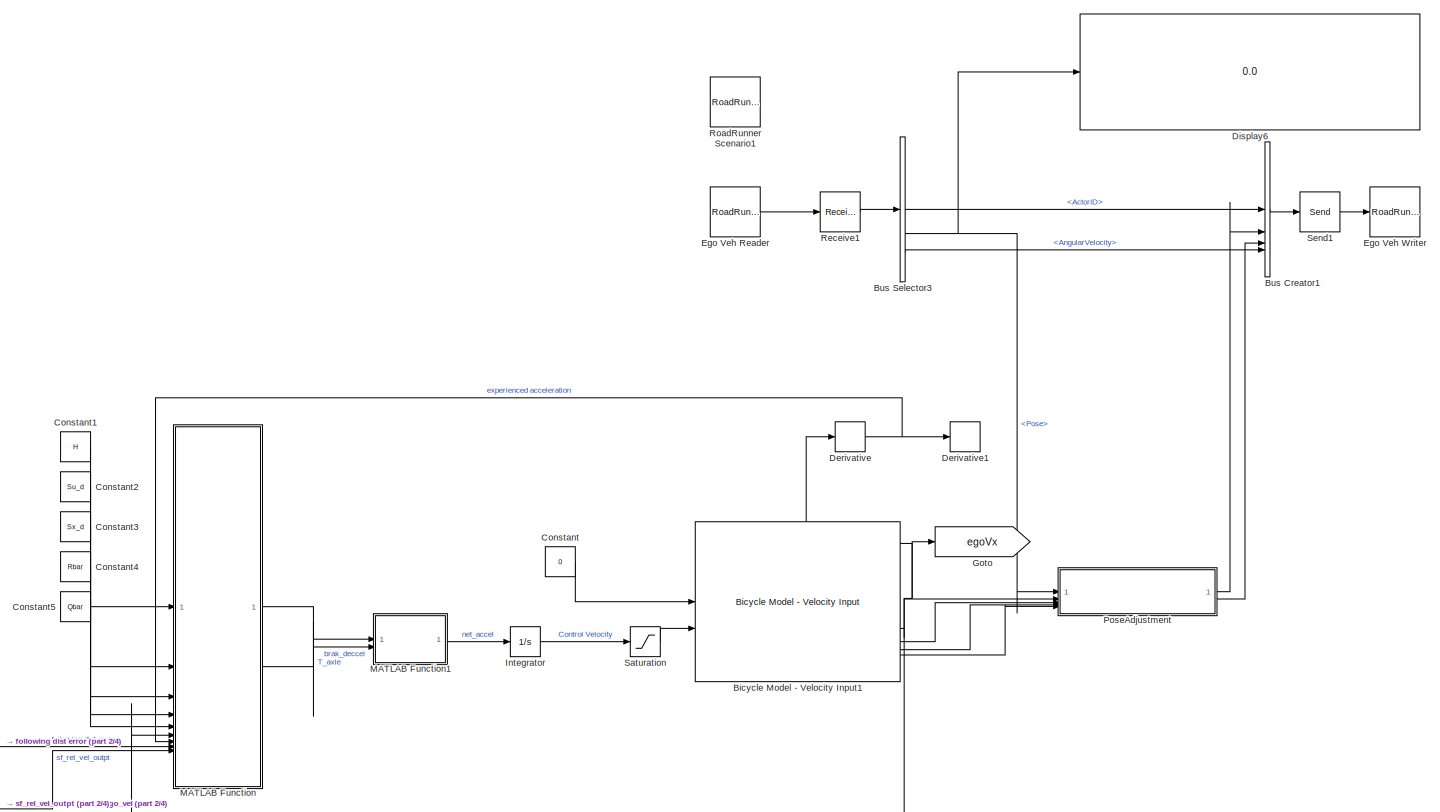
[diagram: root canvas - part 1/4, right side, full height]
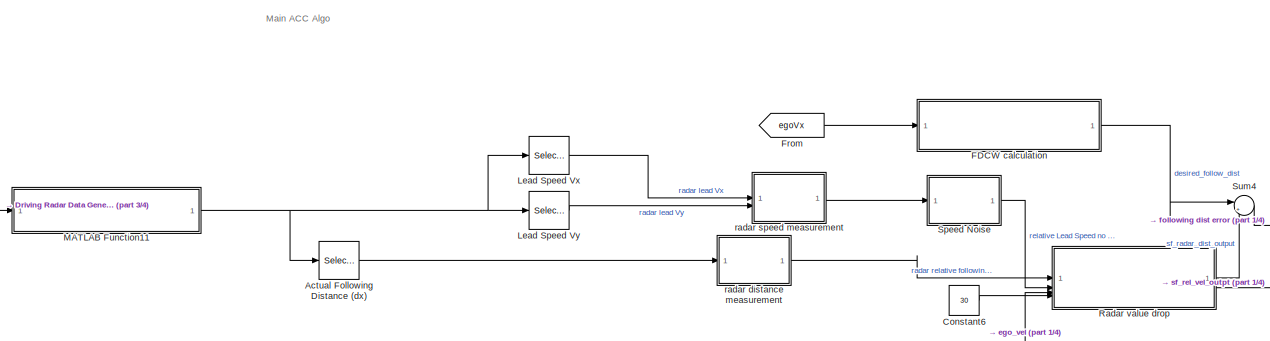
[diagram: root canvas - part 2/4, bottom center region]
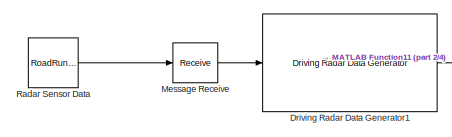
[diagram: root canvas - part 3/4, bottom left region]
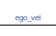
[diagram: root canvas - part 4/4, bottom right region]
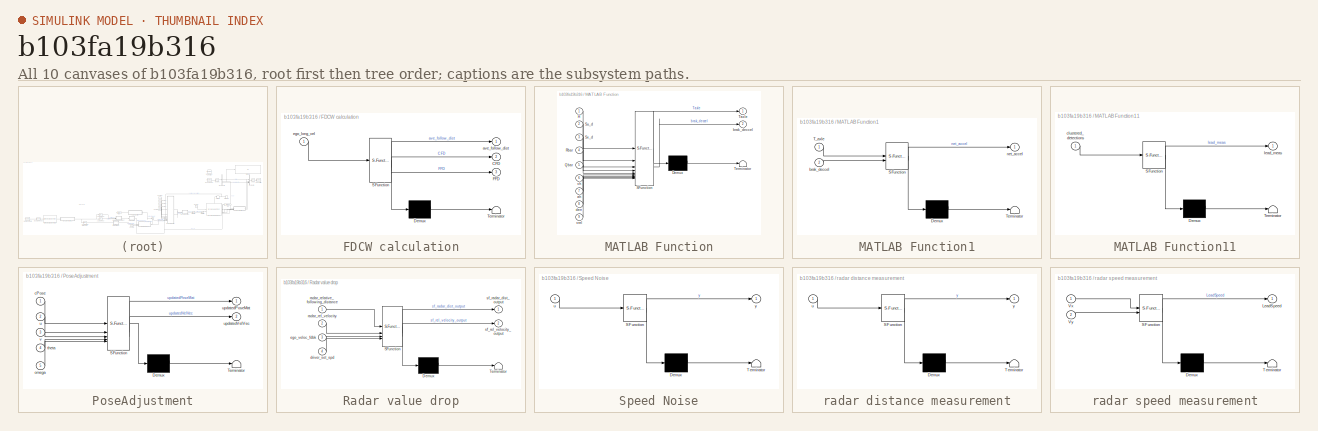
[diagram: thumbnail index - all 10 canvases of the model, root first then tree order]
MODEL slx_b103fa19b316
KIND model
CONFIG AbsTol = auto
CONFIG EnableMultiTasking = off
CONFIG FixedStep = 0.1
CONFIG MaxStep = auto
CONFIG MinStep = auto
CONFIG RelTol = 1e-3
CONFIG SampleTimeConstraint = Unconstrained
CONFIG SolverName = FixedStepAuto
CONFIG StartTime = 0
CONFIG StopTime = 100
BLOCK [Selector] Actual Following Distance (dx)
  IndexOptions = Index vector (dialog)
  Indices = [1]
  InputPortWidth = 6
  OutputSizes = 1
BLOCK [Reference] Bicycle Model - Velocity Input1  REF=autolibshared/Bicycle Model - Velocity Input
  LibrarySourceBlock = drivingscenarioandsensors/Bicycle Model - Velocity Input
  SourceBlock = autolibshared/Bicycle Model - Velocity Input
  SourceType = Vehicle Body 3DOF Lateral
BLOCK [BusCreator] Bus Creator1
  DisplayOption = bar
  InheritFromInputs = off
  Inputs = 4
  NonVirtualBus = on
  OutDataTypeStr = Bus: BusActorRuntime
BLOCK [BusSelector] Bus Selector3
  OutputSignals = ActorID,Pose,Velocity,AngularVelocity
BLOCK [Constant] Constant
  Value = 0
BLOCK [Constant] Constant1
  Value = H
BLOCK [Constant] Constant2
  Value = Su_d
BLOCK [Constant] Constant3
  Value = Sx_d
BLOCK [Constant] Constant4
  Value = Rbar
BLOCK [Constant] Constant5
  Value = Qbar
BLOCK [Constant] Constant6
  Value = 30
BLOCK [Derivative] Derivative
BLOCK [Derivative] Derivative1
BLOCK [Display] Display6
  Decimation = 1
BLOCK [Reference] Driving Radar Data Generator1  REF=drivingscenarioandsensors/Driving Radar Data Generator
  SourceBlock = drivingscenarioandsensors/Driving Radar Data Generator
  SourceType = drivingRadarDataGenerator
BLOCK [Reference] Ego Veh Reader  REF=roadrunnerscenario/RoadRunner Scenario
Reader
  SourceBlock = roadrunnerscenario/RoadRunner Scenario\nReader
BLOCK [Reference] Ego Veh Writer  REF=roadrunnerscenario/RoadRunner Scenario
Writer
  SourceBlock = roadrunnerscenario/RoadRunner Scenario\nWriter
BLOCK [SubSystem] FDCW calculation
  ErrorFcn = Stateflow.Translate.translate
  PermitHierarchicalResolution = ExplicitOnly
  SFBlockType = MATLAB Function
  TreatAsAtomicUnit = on
BLOCK [Demux] FDCW calculation/ Demux 
  Outputs = 1
BLOCK [S-Function] FDCW calculation/ SFunction 
  EnableBusSupport = on
  FunctionName = sf_sfun
  PortCounts = [1 4]
  SFcnIsStateOwnerBlock = off
  SFunctionDeploymentMode = off
  Tag = Stateflow S-Function 23
BLOCK [Terminator] FDCW calculation/ Terminator 
BLOCK [Outport] FDCW calculation/CFD
  Port = 2
BLOCK [Outport] FDCW calculation/FFD
  Port = 3
BLOCK [Outport] FDCW calculation/ave_follow_dist
BLOCK [Inport] FDCW calculation/ego_long_vel
BLOCK [From] From
  GotoTag = egoVx
BLOCK [Goto] Goto
  GotoTag = egoVx
BLOCK [Integrator] Integrator
BLOCK [Selector] Lead Speed Vx
  IndexOptions = Index vector (dialog)
  Indices = 4
  InputPortWidth = 6
  OutputSizes = 1
BLOCK [Selector] Lead Speed Vy
  IndexOptions = Index vector (dialog)
  Indices = 5
  InputPortWidth = 6
  NameLocation = top
  OutputSizes = 1
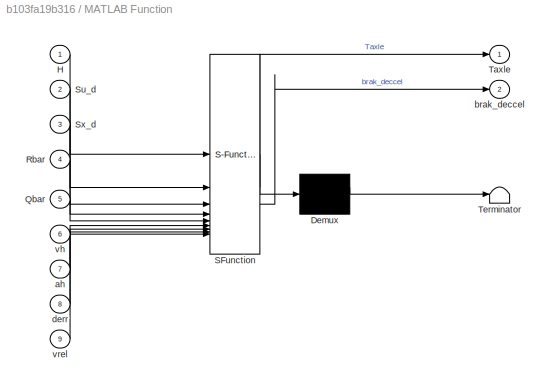
BLOCK [SubSystem] MATLAB Function
  ErrorFcn = Stateflow.Translate.translate
  PermitHierarchicalResolution = ExplicitOnly
  SFBlockType = MATLAB Function
  TreatAsAtomicUnit = on
BLOCK [Demux] MATLAB Function/ Demux 
  Outputs = 1
BLOCK [S-Function] MATLAB Function/ SFunction 
  EnableBusSupport = on
  FunctionName = sf_sfun
  PortCounts = [9 3]
  SFcnIsStateOwnerBlock = off
  SFunctionDeploymentMode = off
  Tag = Stateflow S-Function 2
BLOCK [Terminator] MATLAB Function/ Terminator 
BLOCK [Inport] MATLAB Function/H
BLOCK [Inport] MATLAB Function/Qbar
  Port = 5
BLOCK [Inport] MATLAB Function/Rbar
  Port = 4
BLOCK [Inport] MATLAB Function/Su_d
  Port = 2
BLOCK [Inport] MATLAB Function/Sx_d
  Port = 3
BLOCK [Outport] MATLAB Function/Taxle
BLOCK [Inport] MATLAB Function/ah
  Port = 7
BLOCK [Outport] MATLAB Function/brak_deccel
  Port = 2
BLOCK [Inport] MATLAB Function/derr
  Port = 8
BLOCK [Inport] MATLAB Function/vh
  Port = 6
BLOCK [Inport] MATLAB Function/vrel
  Port = 9
BLOCK [SubSystem] MATLAB Function1
  ErrorFcn = Stateflow.Translate.translate
  PermitHierarchicalResolution = ExplicitOnly
  SFBlockType = MATLAB Function
  TreatAsAtomicUnit = on
BLOCK [Demux] MATLAB Function1/ Demux 
  Outputs = 1
BLOCK [S-Function] MATLAB Function1/ SFunction 
  EnableBusSupport = on
  FunctionName = sf_sfun
  PortCounts = [2 2]
  SFcnIsStateOwnerBlock = off
  SFunctionDeploymentMode = off
  Tag = Stateflow S-Function 1
BLOCK [Terminator] MATLAB Function1/ Terminator 
BLOCK [Inport] MATLAB Function1/T_axle
BLOCK [Inport] MATLAB Function1/brak_deccel
  Port = 2
BLOCK [Outport] MATLAB Function1/net_accel
BLOCK [SubSystem] MATLAB Function11
  ErrorFcn = Stateflow.Translate.translate
  PermitHierarchicalResolution = ExplicitOnly
  SFBlockType = MATLAB Function
  TreatAsAtomicUnit = on
BLOCK [Demux] MATLAB Function11/ Demux 
  Outputs = 1
BLOCK [S-Function] MATLAB Function11/ SFunction 
  EnableBusSupport = on
  FunctionName = sf_sfun
  PortCounts = [1 2]
  SFcnIsStateOwnerBlock = off
  SFunctionDeploymentMode = off
  Tag = Stateflow S-Function 22
BLOCK [Terminator] MATLAB Function11/ Terminator 
BLOCK [Inport] MATLAB Function11/clustered_detections
BLOCK [Outport] MATLAB Function11/lead_meas
BLOCK [Receive] Message Receive
  InputPortMap = u0
  InputPortMessageModes = m
  OutputPortMap = o1
  UseInternalQueue = off
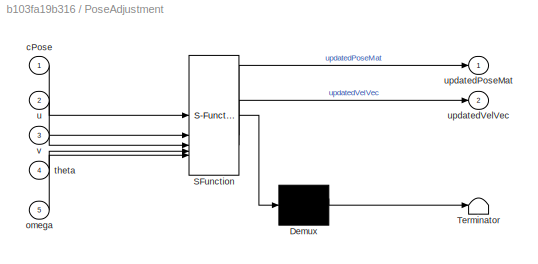
BLOCK [SubSystem] PoseAdjustment
  ErrorFcn = Stateflow.Translate.translate
  PermitHierarchicalResolution = ExplicitOnly
  SFBlockType = MATLAB Function
  TreatAsAtomicUnit = on
BLOCK [Demux] PoseAdjustment/ Demux 
  Outputs = 1
BLOCK [S-Function] PoseAdjustment/ SFunction 
  EnableBusSupport = on
  FunctionName = sf_sfun
  PortCounts = [5 3]
  SFcnIsStateOwnerBlock = off
  SFunctionDeploymentMode = off
  Tag = Stateflow S-Function 12
BLOCK [Terminator] PoseAdjustment/ Terminator 
BLOCK [Inport] PoseAdjustment/cPose
BLOCK [Inport] PoseAdjustment/omega
  Port = 5
BLOCK [Inport] PoseAdjustment/theta
  Port = 4
BLOCK [Inport] PoseAdjustment/u
  Port = 2
BLOCK [Outport] PoseAdjustment/updatedPoseMat
BLOCK [Outport] PoseAdjustment/updatedVelVec
  Port = 2
BLOCK [Inport] PoseAdjustment/v
  Port = 3
BLOCK [Reference] Radar Sensor Data  REF=roadrunnerscenario/RoadRunner Scenario
Reader
  SourceBlock = roadrunnerscenario/RoadRunner Scenario\nReader
BLOCK [SubSystem] Radar value drop
  ErrorFcn = Stateflow.Translate.translate
  PermitHierarchicalResolution = ExplicitOnly
  SFBlockType = Chart
  TreatAsAtomicUnit = on
BLOCK [Demux] Radar value drop/ Demux 
  Outputs = 1
BLOCK [S-Function] Radar value drop/ SFunction 
  EnableBusSupport = on
  FunctionName = sf_sfun
  PortCounts = [4 3]
  SFcnIsStateOwnerBlock = off
  SFunctionDeploymentMode = off
  Tag = Stateflow S-Function 3
BLOCK [Terminator] Radar value drop/ Terminator 
BLOCK [Inport] Radar value drop/driver_set_spd
  Port = 4
BLOCK [Inport] Radar value drop/ego_veloc_fdbk
  Port = 3
BLOCK [Inport] Radar value drop/radar_rel_velocity
  Port = 2
BLOCK [Inport] Radar value drop/radar_relative_following_distance
BLOCK [Outport] Radar value drop/sf_radar_dist_output
BLOCK [Outport] Radar value drop/sf_rel_velocity_output
  Port = 2
BLOCK [Receive] Receive1
  InputPortMap = u0
  InputPortMessageModes = m
  OutputPortMap = o1
  QueueLength = 1
  QueueOverwriting = on
  QueueType = LIFO
  UseInternalQueue = off
BLOCK [Reference] RoadRunner Scenario1  REF=roadrunnerscenario/RoadRunner Scenario
  SourceBlock = roadrunnerscenario/RoadRunner Scenario
BLOCK [Saturate] Saturation
  LowerLimit = 0
  UpperLimit = 100
BLOCK [Send] Send1
  InputPortMap = u1
  OutputPortMessageModes = m
BLOCK [SubSystem] Speed Noise
  ErrorFcn = Stateflow.Translate.translate
  PermitHierarchicalResolution = ExplicitOnly
  SFBlockType = MATLAB Function
  TreatAsAtomicUnit = on
BLOCK [Demux] Speed Noise/ Demux 
  Outputs = 1
BLOCK [S-Function] Speed Noise/ SFunction 
  EnableBusSupport = on
  FunctionName = sf_sfun
  PortCounts = [1 2]
  SFcnIsStateOwnerBlock = off
  SFunctionDeploymentMode = off
  Tag = Stateflow S-Function 15
BLOCK [Terminator] Speed Noise/ Terminator 
BLOCK [Inport] Speed Noise/u
BLOCK [Outport] Speed Noise/y
BLOCK [Sum] Sum4
  Inputs = |+-
BLOCK [SubSystem] radar distance measurement
  ErrorFcn = Stateflow.Translate.translate
  PermitHierarchicalResolution = ExplicitOnly
  SFBlockType = MATLAB Function
  TreatAsAtomicUnit = on
BLOCK [Demux] radar distance measurement/ Demux 
  Outputs = 1
BLOCK [S-Function] radar distance measurement/ SFunction 
  EnableBusSupport = on
  FunctionName = sf_sfun
  PortCounts = [1 2]
  SFcnIsStateOwnerBlock = off
  SFunctionDeploymentMode = off
  Tag = Stateflow S-Function 13
BLOCK [Terminator] radar distance measurement/ Terminator 
BLOCK [Inport] radar distance measurement/u
BLOCK [Outport] radar distance measurement/y
BLOCK [SubSystem] radar speed measurement
  ErrorFcn = Stateflow.Translate.translate
  PermitHierarchicalResolution = ExplicitOnly
  SFBlockType = MATLAB Function
  TreatAsAtomicUnit = on
BLOCK [Demux] radar speed measurement/ Demux 
  Outputs = 1
BLOCK [S-Function] radar speed measurement/ SFunction 
  EnableBusSupport = on
  FunctionName = sf_sfun
  PortCounts = [2 2]
  SFcnIsStateOwnerBlock = off
  SFunctionDeploymentMode = off
  Tag = Stateflow S-Function 14
BLOCK [Terminator] radar speed measurement/ Terminator 
BLOCK [Outport] radar speed measurement/LeadSpeed
BLOCK [Inport] radar speed measurement/Vx
BLOCK [Inport] radar speed measurement/Vy
  Port = 2
ANNOTATION (root): Main ACC Algo
LINE Actual Following Distance (dx):1 -> radar distance measurement:1
NET Bicycle Model - Velocity Input1:2 -> Derivative:1, Goto:1, MATLAB Function:6, PoseAdjustment:2, Radar value drop:3
LINE Bicycle Model - Velocity Input1:3 -> PoseAdjustment:3
LINE Bicycle Model - Velocity Input1:4 -> PoseAdjustment:4
LINE Bicycle Model - Velocity Input1:5 -> PoseAdjustment:5
LINE Bus Creator1:1 -> Send1:1
LINE Bus Selector3:1 -> Bus Creator1:1
NET Bus Selector3:2 -> Display6:1, PoseAdjustment:1
LINE Bus Selector3:4 -> Bus Creator1:4
LINE Constant1:1 -> MATLAB Function:1
LINE Constant2:1 -> MATLAB Function:2
LINE Constant3:1 -> MATLAB Function:3
LINE Constant4:1 -> MATLAB Function:4
LINE Constant5:1 -> MATLAB Function:5
LINE Constant6:1 -> Radar value drop:4
LINE Constant:1 -> Bicycle Model - Velocity Input1:1
NET Derivative:1 -> Derivative1:1, MATLAB Function:7
LINE Driving Radar Data Generator1:1 -> MATLAB Function11:1
LINE Ego Veh Reader:1 -> Receive1:1
LINE FDCW calculation:1 -> Sum4:1
LINE From:1 -> FDCW calculation:1
LINE Integrator:1 -> Saturation:1
LINE Lead Speed Vx:1 -> radar speed measurement:1
LINE Lead Speed Vy:1 -> radar speed measurement:2
NET MATLAB Function11:1 -> Actual Following Distance (dx):1, Lead Speed Vx:1, Lead Speed Vy:1
LINE MATLAB Function1:1 -> Integrator:1
LINE MATLAB Function:1 -> MATLAB Function1:1
LINE MATLAB Function:2 -> MATLAB Function1:2
LINE Message Receive:1 -> Driving Radar Data Generator1:1
LINE PoseAdjustment:1 -> Bus Creator1:2
LINE PoseAdjustment:2 -> Bus Creator1:3
LINE Radar Sensor Data:1 -> Message Receive:1
LINE Radar value drop:1 -> Sum4:2
LINE Radar value drop:2 -> MATLAB Function:9
LINE Receive1:1 -> Bus Selector3:1
LINE Saturation:1 -> Bicycle Model - Velocity Input1:2
LINE Send1:1 -> Ego Veh Writer:1
LINE Speed Noise:1 -> Radar value drop:2
LINE Sum4:1 -> MATLAB Function:8
LINE radar distance measurement:1 -> Radar value drop:1
LINE radar speed measurement:1 -> Speed Noise:1
note: NET lines group one-source signal fan-out (src -> all destinations, sorted); 1:1 wires keep LINE
CHART MATLAB Function1 states=1 transitions=1
  STATE_LABEL 'eML_blk_kernel()'
  STATE_LABEL 'SCRIPT:\nfunction net_accel = fcn(T_axle, brak_deccel)\nm = 2630.84;\nwhl_rad = 0.378;\n\nfwd_accel = T_axle/(m*whl_rad);\n\nnet_accel = fwd_accel + brak_deccel;\n'
CHART MATLAB Function states=1 transitions=1
  STATE_LABEL 'eML_blk_kernel()'
  STATE_LABEL "SCRIPT:\nfunction [Taxle, brak_deccel] = fcn(H, Su_d, Sx_d, Rbar, Qbar, vh, ah, derr, vrel)\nx0 = [vh, ah, derr, vrel]';\nf = 2*(Su_d' * Qbar * Sx_d * x0);\n\nu0 = [0,0,0,0,0,0,0,0,0,0]';\n% u0 = [0,0,0,0,0]'; % with just Taxle\noptions = optimoptions('quadprog','Algorithm','active-set');\nUopt = quadprog(H, f, [],[],[],[],[],[],u0,options);\nu_apply = Uopt(1:2);     % nu = number of inputs; receding horiz...<+203ch>"
CHART Radar value drop states=2 transitions=3
  STATE_LABEL 'Radar_State_Lead_Veh_Present_and_Detected\n\nsf_radar_dist_output = radar_relative_following_distance;\nsf_rel_velocity_output = radar_rel_velocity;\n'
  STATE_LABEL 'Output_Spoof_To_Keep_Moving\n\nsf_radar_dist_output = 100;\nset_spd_err = driver_set_spd - ego_veloc_fdbk;\nsf_rel_velocity_output = set_spd_err;'
CHART PoseAdjustment states=1 transitions=1
  STATE_LABEL 'eML_blk_kernel()'
  STATE_LABEL 'SCRIPT:\nfunction [updatedPoseMat, updatedVelVec] = fcn(cPose, u, v, theta, omega)\n    thetad = theta + omega*(1/10)\n    xd = (u*cos(theta) - v*sin(theta))*(1/10)\n    yd = (u*sin(theta) + v*cos(theta))*(1/10)\n    pose_mat = [cos(-thetad) -sin(-thetad) 0 (yd+cPose(1,4)); sin(-thetad) cos(-thetad) 0 (xd+cPose(2,4)); 0 0 1 0; 0 0 0 1];\n    updatedPoseMat = pose_mat;\n    updatedVelVec = [u*sin(theta) +...<+64ch>'
CHART radar distance measurement states=1 transitions=1
  STATE_LABEL 'eML_blk_kernel()'
  STATE_LABEL 'SCRIPT:\nfunction y = removeSpikes(u)\n\n    persistent buffer;\n    persistent bufferIndex;\n    threshold = 2;\n    windowSize = 15;\n    % windowSize = 4;\n    \n    if isempty(buffer)\n        buffer = zeros(1, windowSize);\n        bufferIndex = 1;\n    end\n    \n    % Update buffer with new value\n    buffer(bufferIndex) = u;\n    bufferIndex = mod(bufferIndex, windowSize) + 1;\n    \n    % Calculate the med...<+257ch>'
CHART radar speed measurement states=1 transitions=1
  STATE_LABEL 'eML_blk_kernel()'
  STATE_LABEL 'SCRIPT:\nfunction LeadSpeed = fcn(Vx, Vy)\n\nif Vx == 0 && Vy == 0 \n    Vx = 0.01;\n    Vy = 0.01;\nelseif Vy == 0\n    Vy = 0.01;\nelseif Vx == 0\n    Vx = 0.01;\nend\n\nif Vx <= 0\n    LeadSpeed = -sqrt(Vx^2 + Vy^2);\nelse\n    LeadSpeed = sqrt(Vx^2 + Vy^2);\nend\n\n'
CHART Speed Noise states=1 transitions=1
  STATE_LABEL 'eML_blk_kernel()'
  STATE_LABEL 'SCRIPT:\nfunction y = removeSpikes(u)\n    % removeSpikes - Removes spikes from a scalar signal based on a threshold\n    %\n    % Inputs:\n    %    u - The input signal (scalar)\n    %    threshold - The threshold value to detect spikes\n    %    windowSize - The size of the window for calculating the median\n    %\n    % Outputs:\n    %    y - The filtered signal with spikes removed\n\n    % Declare persist...<+655ch>'
CHART MATLAB Function11 states=1 transitions=1
  STATE_LABEL 'eML_blk_kernel()'
  STATE_LABEL 'SCRIPT:\nfunction lead_meas = fcn(clustered_detections)\n\nlead_det = clustered_detections.Detections(1);\nlead_meas = lead_det.Measurement;\n\n% relative_dist = sqrt(lead_det.Measurement(1)^2 + lead_det.Measurement(2)^2); % rel_dist = sqrt(x^2+y^2)\n% relative_speed = sqrt(lead_det.Measurement(4)^2 + lead_det.Measurement(5)^2);\nend'
CHART FDCW calculation states=1 transitions=1
  STATE_LABEL 'eML_blk_kernel()'
  STATE_LABEL "SCRIPT:\n% Function to determine the closest (CFD) and furthest follow distance (FFD) for the\n% ego vehicle relative to the lead vehicle given the ego vehicle's current\n% velocity\n\n% This function outputs the middle distance value between the CFD and FFD\n% and those values respectively as well\n\nfunction [ave_follow_dist, CFD, FFD] = fcn(ego_long_vel)\n    persistent dist_history window_size smoothin...<+1178ch>"
CHART  states=0 transitions=0
CHART  states=0 transitions=0
CHART  states=0 transitions=0
CHART  states=0 transitions=0
CHART  states=0 transitions=0
CHART  states=0 transitions=0
CHART  states=0 transitions=0
CHART  states=0 transitions=0
CHART  states=0 transitions=0
